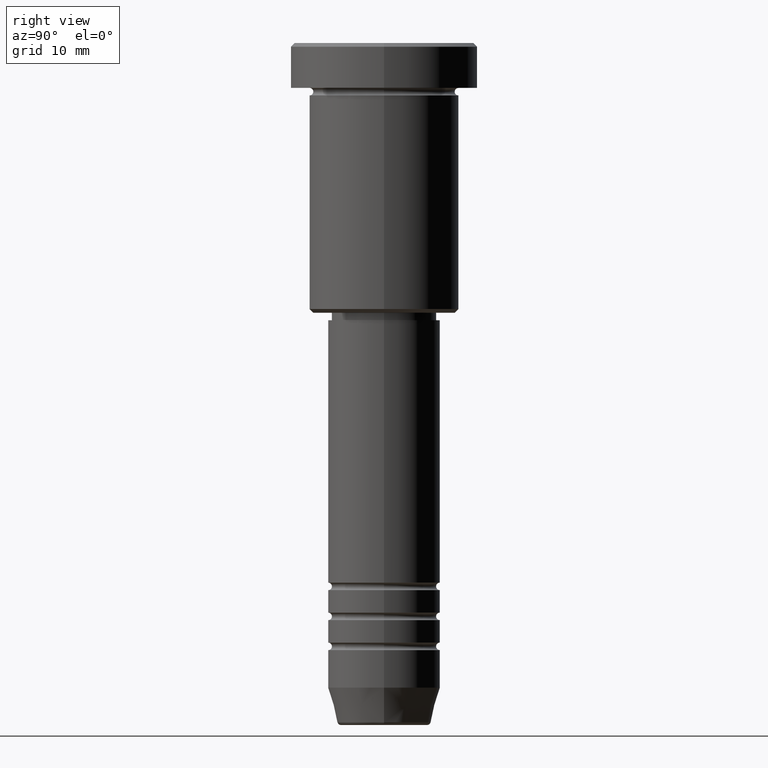
[diagram: clean part render]
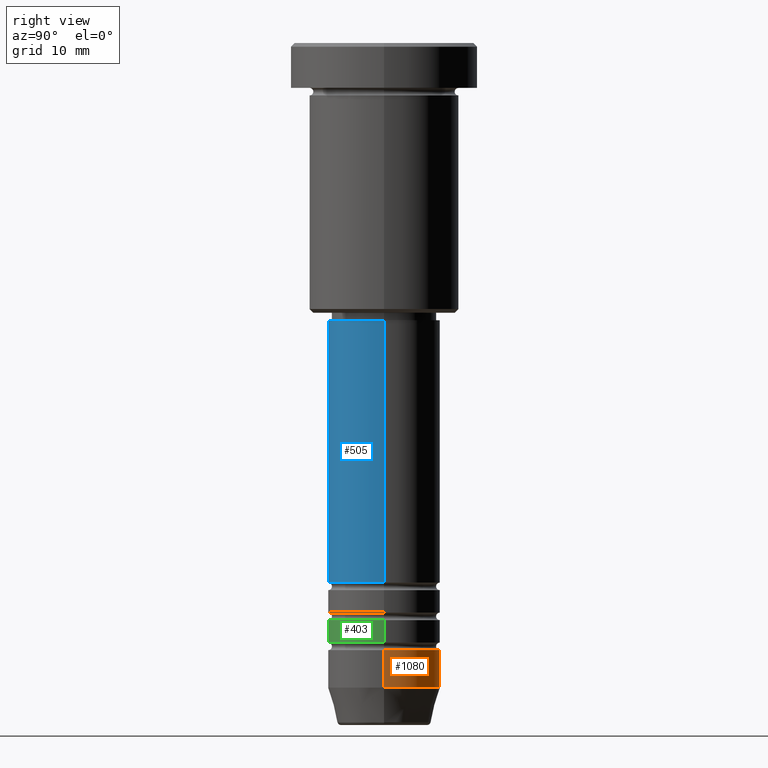
[diagram: same view with three faces highlighted in distinct colors, each labeled with its STEP entity id]
A machine part, right view with three faces highlighted in distinct colors.
Their STEP definitions:

[orange] entity #1080 — the highlighted cylindrical surface (partial cylindrical patch) has radius 7.5 mm, axis along (-0, -0, 1).
#64 = LINE ( 'NONE', #1005, #448 ) ;
#67 = CARTESIAN_POINT ( 'NONE',  ( 0.000000000000000000, 0.000000000000000000, -86.00000000000000000 ) ) ;
#119 = CARTESIAN_POINT ( 'NONE',  ( -7.500000000000000000, 9.184850993605147944E-16, -80.99999999999998579 ) ) ;
#147 = AXIS2_PLACEMENT_3D ( 'NONE', #67, #424, #519 ) ;
#156 = EDGE_CURVE ( 'NONE', #437, #666, #402, .T. ) ;
#162 = CARTESIAN_POINT ( 'NONE',  ( -7.500000000000000000, 9.184850993605147944E-16, -86.00000000000000000 ) ) ;
#164 = VERTEX_POINT ( 'NONE', #119 ) ;
#206 = EDGE_LOOP ( 'NONE', ( #757, #293, #854, #579 ) ) ;
#210 = CARTESIAN_POINT ( 'NONE',  ( 7.500000000000000000, 0.000000000000000000, -80.99999999999998579 ) ) ;
#252 = CARTESIAN_POINT ( 'NONE',  ( 0.000000000000000000, 0.000000000000000000, 0.000000000000000000 ) ) ;
#278 = VECTOR ( 'NONE', #856, 1000.000000000000000 ) ;
#293 = ORIENTED_EDGE ( 'NONE', *, *, #302, .T. ) ;
#302 = EDGE_CURVE ( 'NONE', #703, #164, #64, .T. ) ;
#337 = CYLINDRICAL_SURFACE ( 'NONE', #1020, 7.500000000000000000 ) ;
#363 = DIRECTION ( 'NONE',  ( -0.000000000000000000, -0.000000000000000000, 1.000000000000000000 ) ) ;
#372 = CIRCLE ( 'NONE', #1040, 7.500000000000000000 ) ;
#402 = LINE ( 'NONE', #1052, #278 ) ;
#424 = DIRECTION ( 'NONE',  ( -0.000000000000000000, -0.000000000000000000, 1.000000000000000000 ) ) ;
#436 = CIRCLE ( 'NONE', #147, 7.500000000000000000 ) ;
#437 = VERTEX_POINT ( 'NONE', #559 ) ;
#448 = VECTOR ( 'NONE', #541, 1000.000000000000000 ) ;
#519 = DIRECTION ( 'NONE',  ( 1.000000000000000000, 0.000000000000000000, 0.000000000000000000 ) ) ;
#541 = DIRECTION ( 'NONE',  ( -0.000000000000000000, -0.000000000000000000, 1.000000000000000000 ) ) ;
#559 = CARTESIAN_POINT ( 'NONE',  ( 7.500000000000000000, 0.000000000000000000, -86.00000000000000000 ) ) ;
#579 = ORIENTED_EDGE ( 'NONE', *, *, #156, .F. ) ;
#666 = VERTEX_POINT ( 'NONE', #210 ) ;
#703 = VERTEX_POINT ( 'NONE', #162 ) ;
#707 = FACE_OUTER_BOUND ( 'NONE', #206, .T. ) ;
#757 = ORIENTED_EDGE ( 'NONE', *, *, #1144, .T. ) ;
#789 = DIRECTION ( 'NONE',  ( -0.000000000000000000, -0.000000000000000000, 1.000000000000000000 ) ) ;
#813 = CARTESIAN_POINT ( 'NONE',  ( 0.000000000000000000, 0.000000000000000000, -80.99999999999998579 ) ) ;
#854 = ORIENTED_EDGE ( 'NONE', *, *, #957, .F. ) ;
#856 = DIRECTION ( 'NONE',  ( -0.000000000000000000, -0.000000000000000000, 1.000000000000000000 ) ) ;
#875 = DIRECTION ( 'NONE',  ( 1.000000000000000000, 0.000000000000000000, 0.000000000000000000 ) ) ;
#957 = EDGE_CURVE ( 'NONE', #666, #164, #372, .T. ) ;
#1005 = CARTESIAN_POINT ( 'NONE',  ( -7.500000000000000000, 9.184850993605147944E-16, 0.000000000000000000 ) ) ;
#1020 = AXIS2_PLACEMENT_3D ( 'NONE', #252, #789, #875 ) ;
#1040 = AXIS2_PLACEMENT_3D ( 'NONE', #813, #363, #1092 ) ;
#1052 = CARTESIAN_POINT ( 'NONE',  ( 7.500000000000000000, 0.000000000000000000, 0.000000000000000000 ) ) ;
#1080 = ADVANCED_FACE ( 'NONE', ( #707 ), #337, .T. ) ;
#1092 = DIRECTION ( 'NONE',  ( 1.000000000000000000, 0.000000000000000000, 0.000000000000000000 ) ) ;
#1144 = EDGE_CURVE ( 'NONE', #437, #703, #436, .T. ) ;

[blue] entity #505 — the highlighted cylindrical surface (partial cylindrical patch) has radius 7.5 mm, axis along (-0, -0, 1).
#3 = DIRECTION ( 'NONE',  ( 1.000000000000000000, 0.000000000000000000, 0.000000000000000000 ) ) ;
#20 = CARTESIAN_POINT ( 'NONE',  ( 0.000000000000000000, 0.000000000000000000, 0.000000000000000000 ) ) ;
#29 = VERTEX_POINT ( 'NONE', #607 ) ;
#53 = CARTESIAN_POINT ( 'NONE',  ( 7.500000000000000000, 0.000000000000000000, 0.000000000000000000 ) ) ;
#76 = DIRECTION ( 'NONE',  ( -0.000000000000000000, -0.000000000000000000, 1.000000000000000000 ) ) ;
#153 = CARTESIAN_POINT ( 'NONE',  ( 0.000000000000000000, 0.000000000000000000, -71.99999999999988631 ) ) ;
#197 = EDGE_CURVE ( 'NONE', #584, #29, #231, .T. ) ;
#231 = LINE ( 'NONE', #497, #1074 ) ;
#280 = VECTOR ( 'NONE', #76, 1000.000000000000000 ) ;
#284 = CARTESIAN_POINT ( 'NONE',  ( -7.500000000000001776, 9.184850993605149917E-16, -71.99999999999988631 ) ) ;
#298 = AXIS2_PLACEMENT_3D ( 'NONE', #438, #719, #1166 ) ;
#319 = CIRCLE ( 'NONE', #900, 7.500000000000000888 ) ;
#438 = CARTESIAN_POINT ( 'NONE',  ( 0.000000000000000000, 0.000000000000000000, -37.00000000000000000 ) ) ;
#464 = CYLINDRICAL_SURFACE ( 'NONE', #650, 7.500000000000000000 ) ;
#491 = EDGE_LOOP ( 'NONE', ( #697, #710, #672, #661 ) ) ;
#497 = CARTESIAN_POINT ( 'NONE',  ( -7.500000000000000000, 9.184850993605147944E-16, 0.000000000000000000 ) ) ;
#505 = ADVANCED_FACE ( 'NONE', ( #738 ), #464, .T. ) ;
#515 = CARTESIAN_POINT ( 'NONE',  ( 7.500000000000000000, 0.000000000000000000, -37.00000000000000000 ) ) ;
#520 = DIRECTION ( 'NONE',  ( 1.000000000000000000, 0.000000000000000000, 0.000000000000000000 ) ) ;
#582 = VERTEX_POINT ( 'NONE', #1084 ) ;
#584 = VERTEX_POINT ( 'NONE', #284 ) ;
#591 = DIRECTION ( 'NONE',  ( -0.000000000000000000, -0.000000000000000000, 1.000000000000000000 ) ) ;
#607 = CARTESIAN_POINT ( 'NONE',  ( -7.500000000000000000, 9.184850993605147944E-16, -37.00000000000000000 ) ) ;
#613 = LINE ( 'NONE', #53, #280 ) ;
#650 = AXIS2_PLACEMENT_3D ( 'NONE', #20, #821, #3 ) ;
#661 = ORIENTED_EDGE ( 'NONE', *, *, #1114, .F. ) ;
#672 = ORIENTED_EDGE ( 'NONE', *, *, #1137, .T. ) ;
#685 = DIRECTION ( 'NONE',  ( -0.000000000000000000, -0.000000000000000000, 1.000000000000000000 ) ) ;
#697 = ORIENTED_EDGE ( 'NONE', *, *, #197, .F. ) ;
#710 = ORIENTED_EDGE ( 'NONE', *, *, #767, .T. ) ;
#719 = DIRECTION ( 'NONE',  ( -0.000000000000000000, -0.000000000000000000, 1.000000000000000000 ) ) ;
#738 = FACE_OUTER_BOUND ( 'NONE', #491, .T. ) ;
#767 = EDGE_CURVE ( 'NONE', #584, #582, #319, .T. ) ;
#777 = VERTEX_POINT ( 'NONE', #515 ) ;
#807 = CIRCLE ( 'NONE', #298, 7.500000000000000000 ) ;
#821 = DIRECTION ( 'NONE',  ( -0.000000000000000000, -0.000000000000000000, 1.000000000000000000 ) ) ;
#900 = AXIS2_PLACEMENT_3D ( 'NONE', #153, #591, #520 ) ;
#1074 = VECTOR ( 'NONE', #685, 1000.000000000000000 ) ;
#1084 = CARTESIAN_POINT ( 'NONE',  ( 7.500000000000000888, 0.000000000000000000, -71.99999999999988631 ) ) ;
#1114 = EDGE_CURVE ( 'NONE', #29, #777, #807, .T. ) ;
#1137 = EDGE_CURVE ( 'NONE', #582, #777, #613, .T. ) ;
#1166 = DIRECTION ( 'NONE',  ( 1.000000000000000000, 0.000000000000000000, 0.000000000000000000 ) ) ;

[green] entity #403 — the highlighted cylindrical surface (partial cylindrical patch) has radius 7.5 mm, axis along (-0, -0, 1).
#5 = CIRCLE ( 'NONE', #23, 7.500000000000000000 ) ;
#8 = CARTESIAN_POINT ( 'NONE',  ( 7.500000000000000000, 0.000000000000000000, 0.000000000000000000 ) ) ;
#23 = AXIS2_PLACEMENT_3D ( 'NONE', #769, #1177, #449 ) ;
#38 = VERTEX_POINT ( 'NONE', #1103 ) ;
#75 = EDGE_CURVE ( 'NONE', #914, #964, #999, .T. ) ;
#103 = CARTESIAN_POINT ( 'NONE',  ( -7.500000000000000000, 9.184850993605147944E-16, -76.99999999999987210 ) ) ;
#120 = ORIENTED_EDGE ( 'NONE', *, *, #968, .T. ) ;
#182 = DIRECTION ( 'NONE',  ( -0.000000000000000000, -0.000000000000000000, 1.000000000000000000 ) ) ;
#286 = DIRECTION ( 'NONE',  ( -0.000000000000000000, -0.000000000000000000, 1.000000000000000000 ) ) ;
#297 = CARTESIAN_POINT ( 'NONE',  ( 0.000000000000000000, 0.000000000000000000, 0.000000000000000000 ) ) ;
#403 = ADVANCED_FACE ( 'NONE', ( #627 ), #1024, .T. ) ;
#435 = ORIENTED_EDGE ( 'NONE', *, *, #608, .F. ) ;
#449 = DIRECTION ( 'NONE',  ( 1.000000000000000000, 0.000000000000000000, 0.000000000000000000 ) ) ;
#561 = LINE ( 'NONE', #951, #786 ) ;
#608 = EDGE_CURVE ( 'NONE', #38, #1038, #561, .T. ) ;
#611 = ORIENTED_EDGE ( 'NONE', *, *, #871, .F. ) ;
#627 = FACE_OUTER_BOUND ( 'NONE', #1160, .T. ) ;
#629 = CARTESIAN_POINT ( 'NONE',  ( 7.500000000000000000, 0.000000000000000000, -76.99999999999987210 ) ) ;
#668 = ORIENTED_EDGE ( 'NONE', *, *, #75, .T. ) ;
#694 = AXIS2_PLACEMENT_3D ( 'NONE', #1004, #1088, #991 ) ;
#730 = CIRCLE ( 'NONE', #694, 7.500000000000000888 ) ;
#759 = DIRECTION ( 'NONE',  ( -0.000000000000000000, -0.000000000000000000, 1.000000000000000000 ) ) ;
#769 = CARTESIAN_POINT ( 'NONE',  ( 0.000000000000000000, 0.000000000000000000, -76.99999999999987210 ) ) ;
#784 = AXIS2_PLACEMENT_3D ( 'NONE', #297, #286, #916 ) ;
#786 = VECTOR ( 'NONE', #759, 1000.000000000000000 ) ;
#867 = VECTOR ( 'NONE', #182, 1000.000000000000000 ) ;
#871 = EDGE_CURVE ( 'NONE', #1038, #964, #5, .T. ) ;
#906 = CARTESIAN_POINT ( 'NONE',  ( 7.500000000000000888, 0.000000000000000000, -79.99999999999987210 ) ) ;
#914 = VERTEX_POINT ( 'NONE', #906 ) ;
#916 = DIRECTION ( 'NONE',  ( 1.000000000000000000, 0.000000000000000000, 0.000000000000000000 ) ) ;
#951 = CARTESIAN_POINT ( 'NONE',  ( -7.500000000000000000, 9.184850993605147944E-16, 0.000000000000000000 ) ) ;
#964 = VERTEX_POINT ( 'NONE', #629 ) ;
#968 = EDGE_CURVE ( 'NONE', #38, #914, #730, .T. ) ;
#991 = DIRECTION ( 'NONE',  ( 1.000000000000000000, 0.000000000000000000, 0.000000000000000000 ) ) ;
#999 = LINE ( 'NONE', #8, #867 ) ;
#1004 = CARTESIAN_POINT ( 'NONE',  ( 0.000000000000000000, 0.000000000000000000, -79.99999999999987210 ) ) ;
#1024 = CYLINDRICAL_SURFACE ( 'NONE', #784, 7.500000000000000000 ) ;
#1038 = VERTEX_POINT ( 'NONE', #103 ) ;
#1088 = DIRECTION ( 'NONE',  ( -0.000000000000000000, -0.000000000000000000, 1.000000000000000000 ) ) ;
#1103 = CARTESIAN_POINT ( 'NONE',  ( -7.500000000000001776, 9.184850993605149917E-16, -79.99999999999987210 ) ) ;
#1160 = EDGE_LOOP ( 'NONE', ( #435, #120, #668, #611 ) ) ;
#1177 = DIRECTION ( 'NONE',  ( -0.000000000000000000, -0.000000000000000000, 1.000000000000000000 ) ) ;